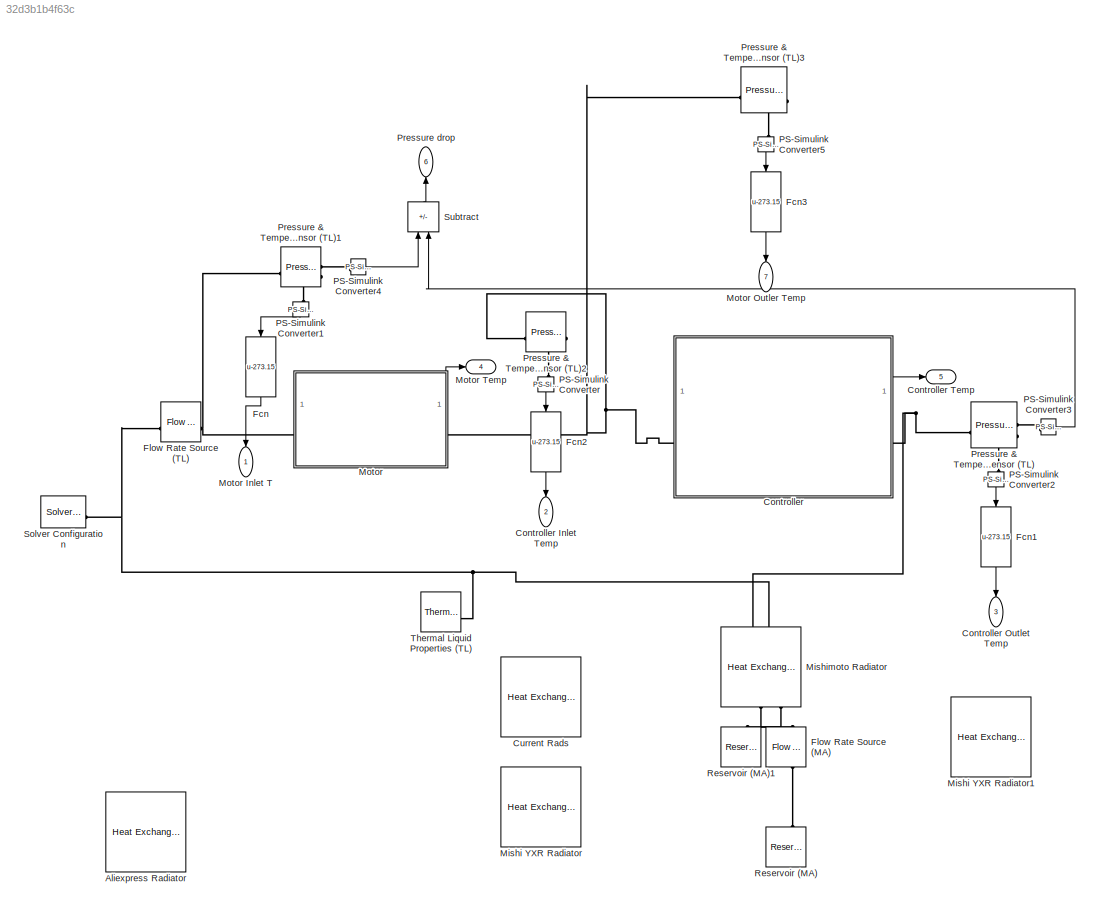
MODEL slx_32d3b1b4f63c
KIND model
CONFIG AbsTol = auto
CONFIG EnableMultiTasking = off
CONFIG FixedStep = auto
CONFIG MaxStep = auto
CONFIG MinStep = auto
CONFIG RelTol = 1e-3
CONFIG SampleTimeConstraint = Unconstrained
CONFIG SolverName = VariableStepAuto
CONFIG StartTime = 0.0
CONFIG StopTime = 2000
BLOCK [Reference] Aliexpress Radiator  REF=SimscapeFluids_lib/Heat Exchangers/Thermal Liquid -
Moist Air/Heat Exchanger
(TL-MA)
  NameLocation = left
  SourceBlock = SimscapeFluids_lib/Heat Exchangers/Thermal Liquid -\nMoist Air/Heat Exchanger\n(TL-MA)
  SourceType = Heat Exchanger\n(TL-MA)
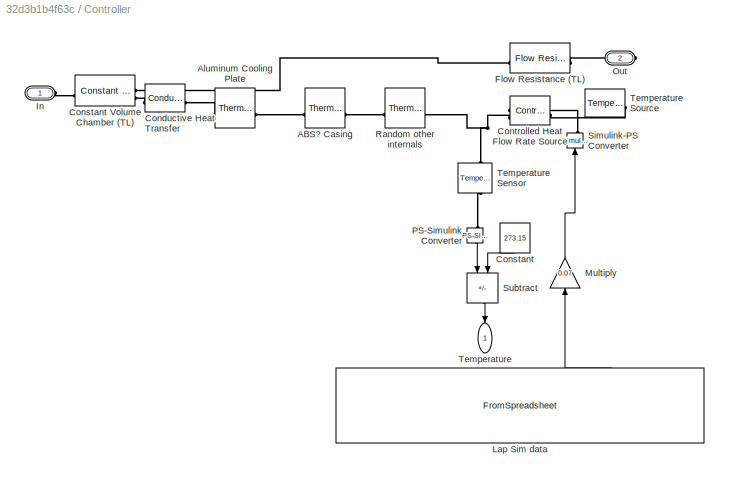
BLOCK [SubSystem] Controller
BLOCK [Outport] Controller Inlet Temp
  NameLocation = left
  Port = 2
BLOCK [Outport] Controller Outlet Temp
  NameLocation = left
  Port = 3
BLOCK [Outport] Controller Temp
  Port = 5
BLOCK [Reference] Controller/ABS? Casing  REF=fl_lib/Thermal/Thermal Elements/Thermal Mass
  SourceBlock = fl_lib/Thermal/Thermal Elements/Thermal Mass
  SourceType = Thermal Mass
BLOCK [Reference] Controller/Aluminum Cooling Plate  REF=fl_lib/Thermal/Thermal Elements/Thermal Mass
  SourceBlock = fl_lib/Thermal/Thermal Elements/Thermal Mass
  SourceType = Thermal Mass
BLOCK [Reference] Controller/Conductive Heat Transfer  REF=fl_lib/Thermal/Thermal Elements/Conductive Heat
Transfer
  SourceBlock = fl_lib/Thermal/Thermal Elements/Conductive Heat\nTransfer
  SourceType = Conductive Heat\nTransfer
BLOCK [Constant] Controller/Constant
  NameLocation = left
  Value = 273.15
BLOCK [Reference] Controller/Constant Volume Chamber (TL)  REF=fl_lib/Thermal Liquid/Elements/Constant Volume
Chamber (TL)
  SourceBlock = fl_lib/Thermal Liquid/Elements/Constant Volume\nChamber (TL)
  SourceType = Constant Volume\nChamber (TL)
BLOCK [Reference] Controller/Controlled Heat Flow Rate Source  REF=fl_lib/Thermal/Thermal Sources/Controlled Heat Flow
Rate Source
  NameLocation = top
  SourceBlock = fl_lib/Thermal/Thermal Sources/Controlled Heat Flow\nRate Source
  SourceType = Controlled Heat Flow\nRate Source
BLOCK [Reference] Controller/Flow Resistance (TL)  REF=fl_lib/Thermal Liquid/Elements/Flow Resistance (TL)
  SourceBlock = fl_lib/Thermal Liquid/Elements/Flow Resistance (TL)
  SourceType = Flow Resistance (TL)
BLOCK [PMIOPort] Controller/In
  Side = Left
BLOCK [FromSpreadsheet] Controller/Lap Sim data
  FileName = <userpath>\School\UCalgary Racing\2024-25\Projects\UCR02-CoolingSim\data\LapTime_Power_new__10.xlsx
  NameLocation = right
  SampleTime = 0.1
  SheetName = LapTime_Power_new__10
BLOCK [Gain] Controller/Multiply
  Gain = 0.07
  NameLocation = right
BLOCK [PMIOPort] Controller/Out
  Port = 2
  Side = Right
BLOCK [Reference] Controller/PS-Simulink Converter  REF=nesl_utility/PS-Simulink
Converter
  NameLocation = left
  SourceBlock = nesl_utility/PS-Simulink\nConverter
  SourceType = PS-Simulink\nConverter
BLOCK [Reference] Controller/Random other internals  REF=fl_lib/Thermal/Thermal Elements/Thermal Mass
  SourceBlock = fl_lib/Thermal/Thermal Elements/Thermal Mass
  SourceType = Thermal Mass
BLOCK [Reference] Controller/Simulink-PS Converter  REF=nesl_utility/Simulink-PS
Converter
  NameLocation = right
  SourceBlock = nesl_utility/Simulink-PS\nConverter
  SourceType = Simulink-PS\nConverter
BLOCK [Sum] Controller/Subtract
  IconShape = rectangular
  Inputs = +-
  NameLocation = left
BLOCK [Outport] Controller/Temperature
  NameLocation = left
BLOCK [Reference] Controller/Temperature Sensor  REF=fl_lib/Thermal/Thermal Sensors/Temperature Sensor
  NameLocation = left
  SourceBlock = fl_lib/Thermal/Thermal Sensors/Temperature Sensor
  SourceType = Temperature Sensor
BLOCK [Reference] Controller/Temperature Source  REF=fl_lib/Thermal/Thermal Sources/Temperature Source
  NameLocation = top
  SourceBlock = fl_lib/Thermal/Thermal Sources/Temperature Source
  SourceType = Temperature Source
BLOCK [Reference] Current Rads  REF=SimscapeFluids_lib/Heat Exchangers/Thermal Liquid -
Moist Air/Heat Exchanger
(TL-MA)
  NameLocation = left
  SourceBlock = SimscapeFluids_lib/Heat Exchangers/Thermal Liquid -\nMoist Air/Heat Exchanger\n(TL-MA)
  SourceType = Heat Exchanger\n(TL-MA)
BLOCK [Fcn] Fcn
  Expr = u-273.15
  NameLocation = left
BLOCK [Fcn] Fcn1
  Expr = u-273.15
  NameLocation = left
BLOCK [Fcn] Fcn2
  Expr = u-273.15
  NameLocation = left
BLOCK [Fcn] Fcn3
  Expr = u-273.15
  NameLocation = left
BLOCK [Reference] Flow Rate Source (MA)  REF=fl_lib/Moist Air/Sources/Flow Rate Source
(MA)
  NameLocation = right
  SourceBlock = fl_lib/Moist Air/Sources/Flow Rate Source\n(MA)
  SourceType = Flow Rate Source\n(MA)
BLOCK [Reference] Flow Rate Source (TL)  REF=fl_lib/Thermal Liquid/Sources/Flow Rate Source
(TL)
  SourceBlock = fl_lib/Thermal Liquid/Sources/Flow Rate Source\n(TL)
  SourceType = Flow Rate Source\n(TL)
BLOCK [Reference] Mishi YXR Radiator  REF=SimscapeFluids_lib/Heat Exchangers/Thermal Liquid -
Moist Air/Heat Exchanger
(TL-MA)
  NameLocation = left
  SourceBlock = SimscapeFluids_lib/Heat Exchangers/Thermal Liquid -\nMoist Air/Heat Exchanger\n(TL-MA)
  SourceType = Heat Exchanger\n(TL-MA)
BLOCK [Reference] Mishi YXR Radiator1  REF=SimscapeFluids_lib/Heat Exchangers/Thermal Liquid -
Moist Air/Heat Exchanger
(TL-MA)
  NameLocation = left
  SourceBlock = SimscapeFluids_lib/Heat Exchangers/Thermal Liquid -\nMoist Air/Heat Exchanger\n(TL-MA)
  SourceType = Heat Exchanger\n(TL-MA)
BLOCK [Reference] Mishimoto Radiator  REF=SimscapeFluids_lib/Heat Exchangers/Thermal Liquid -
Moist Air/Heat Exchanger
(TL-MA)
  NameLocation = left
  SourceBlock = SimscapeFluids_lib/Heat Exchangers/Thermal Liquid -\nMoist Air/Heat Exchanger\n(TL-MA)
  SourceType = Heat Exchanger\n(TL-MA)
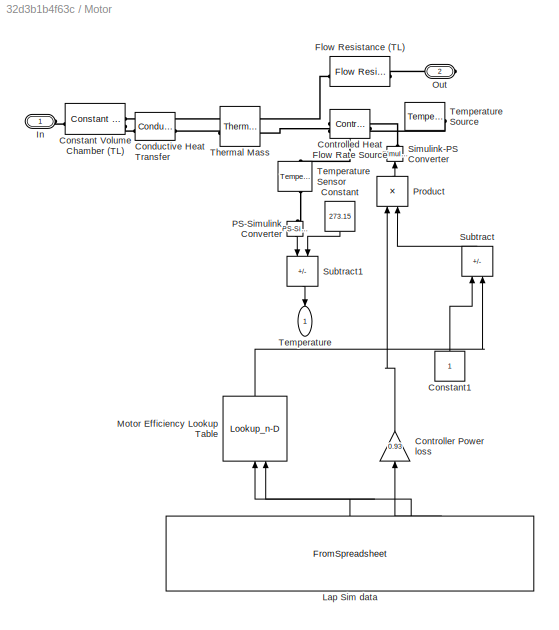
BLOCK [SubSystem] Motor
BLOCK [Outport] Motor Inlet T
  NameLocation = left
BLOCK [Outport] Motor Outler Temp
  NameLocation = left
  Port = 7
BLOCK [Outport] Motor Temp
  Port = 4
BLOCK [Reference] Motor/Conductive Heat Transfer  REF=fl_lib/Thermal/Thermal Elements/Conductive Heat
Transfer
  SourceBlock = fl_lib/Thermal/Thermal Elements/Conductive Heat\nTransfer
  SourceType = Conductive Heat\nTransfer
BLOCK [Constant] Motor/Constant
  NameLocation = left
  Value = 273.15
BLOCK [Reference] Motor/Constant Volume Chamber (TL)  REF=fl_lib/Thermal Liquid/Elements/Constant Volume
Chamber (TL)
  SourceBlock = fl_lib/Thermal Liquid/Elements/Constant Volume\nChamber (TL)
  SourceType = Constant Volume\nChamber (TL)
BLOCK [Constant] Motor/Constant1
  NameLocation = right
BLOCK [Reference] Motor/Controlled Heat Flow Rate Source  REF=fl_lib/Thermal/Thermal Sources/Controlled Heat Flow
Rate Source
  NameLocation = top
  SourceBlock = fl_lib/Thermal/Thermal Sources/Controlled Heat Flow\nRate Source
  SourceType = Controlled Heat Flow\nRate Source
BLOCK [Gain] Motor/Controller Power loss
  Gain = 0.93
  NameLocation = right
BLOCK [Reference] Motor/Flow Resistance (TL)  REF=fl_lib/Thermal Liquid/Elements/Flow Resistance (TL)
  SourceBlock = fl_lib/Thermal Liquid/Elements/Flow Resistance (TL)
  SourceType = Flow Resistance (TL)
BLOCK [PMIOPort] Motor/In
  Side = Left
BLOCK [FromSpreadsheet] Motor/Lap Sim data
  FileName = <userpath>\School\UCalgary Racing\2024-25\Projects\UCR02-CoolingSim\data\LapTime_Power_new__10.xlsx
  NameLocation = right
  SampleTime = 0.1
  SheetName = LapTime_Power_new__10
BLOCK [Lookup_n-D] Motor/Motor Efficiency Lookup Table
  BreakpointsForDimension1 = speed
  BreakpointsForDimension2 = torque
  InputPortMap = u0,u1
  InternalRulePriority = Speed
  NameLocation = right
  RndMeth = Simplest
  Table = efficiencyGrid
BLOCK [PMIOPort] Motor/Out
  Port = 2
  Side = Right
BLOCK [Reference] Motor/PS-Simulink Converter  REF=nesl_utility/PS-Simulink
Converter
  NameLocation = left
  SourceBlock = nesl_utility/PS-Simulink\nConverter
  SourceType = PS-Simulink\nConverter
BLOCK [Product] Motor/Product
  NameLocation = right
BLOCK [Reference] Motor/Simulink-PS Converter  REF=nesl_utility/Simulink-PS
Converter
  NameLocation = right
  SourceBlock = nesl_utility/Simulink-PS\nConverter
  SourceType = Simulink-PS\nConverter
BLOCK [Sum] Motor/Subtract
  IconShape = rectangular
  Inputs = +-
  NameLocation = right
BLOCK [Sum] Motor/Subtract1
  IconShape = rectangular
  Inputs = +-
  NameLocation = left
BLOCK [Outport] Motor/Temperature
  NameLocation = left
BLOCK [Reference] Motor/Temperature Sensor  REF=fl_lib/Thermal/Thermal Sensors/Temperature Sensor
  NameLocation = left
  SourceBlock = fl_lib/Thermal/Thermal Sensors/Temperature Sensor
  SourceType = Temperature Sensor
BLOCK [Reference] Motor/Temperature Source  REF=fl_lib/Thermal/Thermal Sources/Temperature Source
  NameLocation = top
  SourceBlock = fl_lib/Thermal/Thermal Sources/Temperature Source
  SourceType = Temperature Source
BLOCK [Reference] Motor/Thermal Mass  REF=fl_lib/Thermal/Thermal Elements/Thermal Mass
  SourceBlock = fl_lib/Thermal/Thermal Elements/Thermal Mass
  SourceType = Thermal Mass
BLOCK [Reference] PS-Simulink Converter  REF=nesl_utility/PS-Simulink
Converter
  NameLocation = left
  SourceBlock = nesl_utility/PS-Simulink\nConverter
  SourceType = PS-Simulink\nConverter
BLOCK [Reference] PS-Simulink Converter1  REF=nesl_utility/PS-Simulink
Converter
  NameLocation = left
  SourceBlock = nesl_utility/PS-Simulink\nConverter
  SourceType = PS-Simulink\nConverter
BLOCK [Reference] PS-Simulink Converter2  REF=nesl_utility/PS-Simulink
Converter
  NameLocation = left
  SourceBlock = nesl_utility/PS-Simulink\nConverter
  SourceType = PS-Simulink\nConverter
BLOCK [Reference] PS-Simulink Converter3  REF=nesl_utility/PS-Simulink
Converter
  SourceBlock = nesl_utility/PS-Simulink\nConverter
  SourceType = PS-Simulink\nConverter
BLOCK [Reference] PS-Simulink Converter4  REF=nesl_utility/PS-Simulink
Converter
  SourceBlock = nesl_utility/PS-Simulink\nConverter
  SourceType = PS-Simulink\nConverter
BLOCK [Reference] PS-Simulink Converter5  REF=nesl_utility/PS-Simulink
Converter
  NameLocation = left
  SourceBlock = nesl_utility/PS-Simulink\nConverter
  SourceType = PS-Simulink\nConverter
BLOCK [Reference] Pressure & Temperature Sensor (TL)  REF=fl_lib/Thermal Liquid/Sensors/Pressure &
Temperature Sensor
(TL)
  SourceBlock = fl_lib/Thermal Liquid/Sensors/Pressure &\nTemperature Sensor\n(TL)
  SourceType = Pressure &\nTemperature Sensor\n(TL)
BLOCK [Reference] Pressure & Temperature Sensor (TL)1  REF=fl_lib/Thermal Liquid/Sensors/Pressure &
Temperature Sensor
(TL)
  SourceBlock = fl_lib/Thermal Liquid/Sensors/Pressure &\nTemperature Sensor\n(TL)
  SourceType = Pressure &\nTemperature Sensor\n(TL)
BLOCK [Reference] Pressure & Temperature Sensor (TL)2  REF=fl_lib/Thermal Liquid/Sensors/Pressure &
Temperature Sensor
(TL)
  SourceBlock = fl_lib/Thermal Liquid/Sensors/Pressure &\nTemperature Sensor\n(TL)
  SourceType = Pressure &\nTemperature Sensor\n(TL)
BLOCK [Reference] Pressure & Temperature Sensor (TL)3  REF=fl_lib/Thermal Liquid/Sensors/Pressure &
Temperature Sensor
(TL)
  SourceBlock = fl_lib/Thermal Liquid/Sensors/Pressure &\nTemperature Sensor\n(TL)
  SourceType = Pressure &\nTemperature Sensor\n(TL)
BLOCK [Outport] Pressure drop
  NameLocation = right
  Port = 6
BLOCK [Reference] Reservoir (MA)  REF=fl_lib/Moist Air/Elements/Reservoir (MA)
  NameLocation = right
  SourceBlock = fl_lib/Moist Air/Elements/Reservoir (MA)
  SourceType = Reservoir (MA)
BLOCK [Reference] Reservoir (MA)1  REF=fl_lib/Moist Air/Elements/Reservoir (MA)
  NameLocation = right
  SourceBlock = fl_lib/Moist Air/Elements/Reservoir (MA)
  SourceType = Reservoir (MA)
BLOCK [Reference] Solver Configuration  REF=nesl_utility/Solver
Configuration
  SourceBlock = nesl_utility/Solver\nConfiguration
  SourceType = Solver\nConfiguration
BLOCK [Sum] Subtract
  IconShape = rectangular
  Inputs = +-
  NameLocation = right
BLOCK [Reference] Thermal Liquid Properties (TL)  REF=SimscapeFluids_lib/Thermal Liquid/Utilities/Thermal Liquid
Properties (TL)
  SourceBlock = SimscapeFluids_lib/Thermal Liquid/Utilities/Thermal Liquid\nProperties (TL)
  SourceType = Thermal Liquid\nProperties (TL)
LINE Controller/Constant:1 -> Controller/Subtract:2
LINE Controller/Lap Sim data:3 -> Controller/Multiply:1
LINE Controller/Multiply:1 -> Controller/Simulink-PS Converter:1
LINE Controller/PS-Simulink Converter:1 -> Controller/Subtract:1
LINE Controller/Subtract:1 -> Controller/Temperature:1
LINE Controller:1 -> Controller Temp:1
LINE Fcn1:1 -> Controller Outlet Temp:1
LINE Fcn2:1 -> Controller Inlet Temp:1
LINE Fcn3:1 -> Motor Outler Temp:1
LINE Fcn:1 -> Motor Inlet T:1
LINE Motor/Constant1:1 -> Motor/Subtract:1
LINE Motor/Constant:1 -> Motor/Subtract1:2
LINE Motor/Controller Power loss:1 -> Motor/Product:1
LINE Motor/Lap Sim data:1 -> Motor/Motor Efficiency Lookup Table:1
LINE Motor/Lap Sim data:2 -> Motor/Motor Efficiency Lookup Table:2
LINE Motor/Lap Sim data:3 -> Motor/Controller Power loss:1
LINE Motor/Motor Efficiency Lookup Table:1 -> Motor/Subtract:2
LINE Motor/PS-Simulink Converter:1 -> Motor/Subtract1:1
LINE Motor/Product:1 -> Motor/Simulink-PS Converter:1
LINE Motor/Subtract1:1 -> Motor/Temperature:1
LINE Motor/Subtract:1 -> Motor/Product:2
LINE Motor:1 -> Motor Temp:1
LINE PS-Simulink Converter1:1 -> Fcn:1
LINE PS-Simulink Converter2:1 -> Fcn1:1
LINE PS-Simulink Converter3:1 -> Subtract:2
LINE PS-Simulink Converter4:1 -> Subtract:1
LINE PS-Simulink Converter5:1 -> Fcn3:1
LINE PS-Simulink Converter:1 -> Fcn2:1
LINE Subtract:1 -> Pressure drop:1
PLINE Controller/ABS? Casing:LConn1 -- Controller/Random other internals:RConn1
PLINE Controller/ABS? Casing:RConn1 -- Controller/Aluminum Cooling Plate:LConn1
PLINE Controller/Aluminum Cooling Plate:RConn1 -- Controller/Conductive Heat Transfer:LConn1
PLINE Controller/Conductive Heat Transfer:RConn1 -- Controller/Constant Volume Chamber (TL):LConn2
PLINE Controller/Constant Volume Chamber (TL):LConn1 -- Controller/Flow Resistance (TL):LConn1
PLINE Controller/Constant Volume Chamber (TL):RConn1 -- Controller/In:RConn1
PNET net1: Controller/Controlled Heat Flow Rate Source:LConn1 -- Controller/Random other internals:LConn1 -- Controller/Temperature Sensor:LConn1
PLINE Controller/Controlled Heat Flow Rate Source:RConn1 -- Controller/Simulink-PS Converter:RConn1
PLINE Controller/Controlled Heat Flow Rate Source:RConn2 -- Controller/Temperature Source:LConn1
PLINE Controller/Flow Resistance (TL):RConn1 -- Controller/Out:RConn1
PLINE Controller/PS-Simulink Converter:LConn1 -- Controller/Temperature Sensor:RConn1
PNET net2: Controller:LConn1 -- Motor:RConn1 -- Pressure & Temperature Sensor (TL)2:LConn1 -- Pressure & Temperature Sensor (TL)3:LConn1
PNET net3: Controller:RConn1 -- Mishimoto Radiator:LConn1 -- Pressure & Temperature Sensor (TL):LConn1
PLINE Flow Rate Source (MA):LConn1 -- Reservoir (MA):LConn1
PLINE Flow Rate Source (MA):RConn1 -- Mishimoto Radiator:RConn1
PNET net4: Flow Rate Source (TL):LConn1 -- Mishimoto Radiator:LConn2 -- Solver Configuration:RConn1 -- Thermal Liquid Properties (TL):RConn1
PNET net5: Flow Rate Source (TL):RConn1 -- Motor:LConn1 -- Pressure & Temperature Sensor (TL)1:LConn1
PLINE Mishimoto Radiator:RConn2 -- Reservoir (MA)1:LConn1
PLINE Motor/Conductive Heat Transfer:LConn1 -- Motor/Thermal Mass:RConn1
PLINE Motor/Conductive Heat Transfer:RConn1 -- Motor/Constant Volume Chamber (TL):LConn2
PLINE Motor/Constant Volume Chamber (TL):LConn1 -- Motor/Flow Resistance (TL):LConn1
PLINE Motor/Constant Volume Chamber (TL):RConn1 -- Motor/In:RConn1
PNET net6: Motor/Controlled Heat Flow Rate Source:LConn1 -- Motor/Temperature Sensor:LConn1 -- Motor/Thermal Mass:LConn1
PLINE Motor/Controlled Heat Flow Rate Source:RConn1 -- Motor/Simulink-PS Converter:RConn1
PLINE Motor/Controlled Heat Flow Rate Source:RConn2 -- Motor/Temperature Source:LConn1
PLINE Motor/Flow Resistance (TL):RConn1 -- Motor/Out:RConn1
PLINE Motor/PS-Simulink Converter:LConn1 -- Motor/Temperature Sensor:RConn1
PLINE PS-Simulink Converter1:LConn1 -- Pressure & Temperature Sensor (TL)1:RConn2
PLINE PS-Simulink Converter2:LConn1 -- Pressure & Temperature Sensor (TL):RConn2
PLINE PS-Simulink Converter3:LConn1 -- Pressure & Temperature Sensor (TL):RConn1
PLINE PS-Simulink Converter4:LConn1 -- Pressure & Temperature Sensor (TL)1:RConn1
PLINE PS-Simulink Converter5:LConn1 -- Pressure & Temperature Sensor (TL)3:RConn2
PLINE PS-Simulink Converter:LConn1 -- Pressure & Temperature Sensor (TL)2:RConn1
note: PNET lines group multi-terminal physical nets as a canonical sorted terminal list (undirected conserving connections); 2-terminal nets keep the pairwise PLINE form
